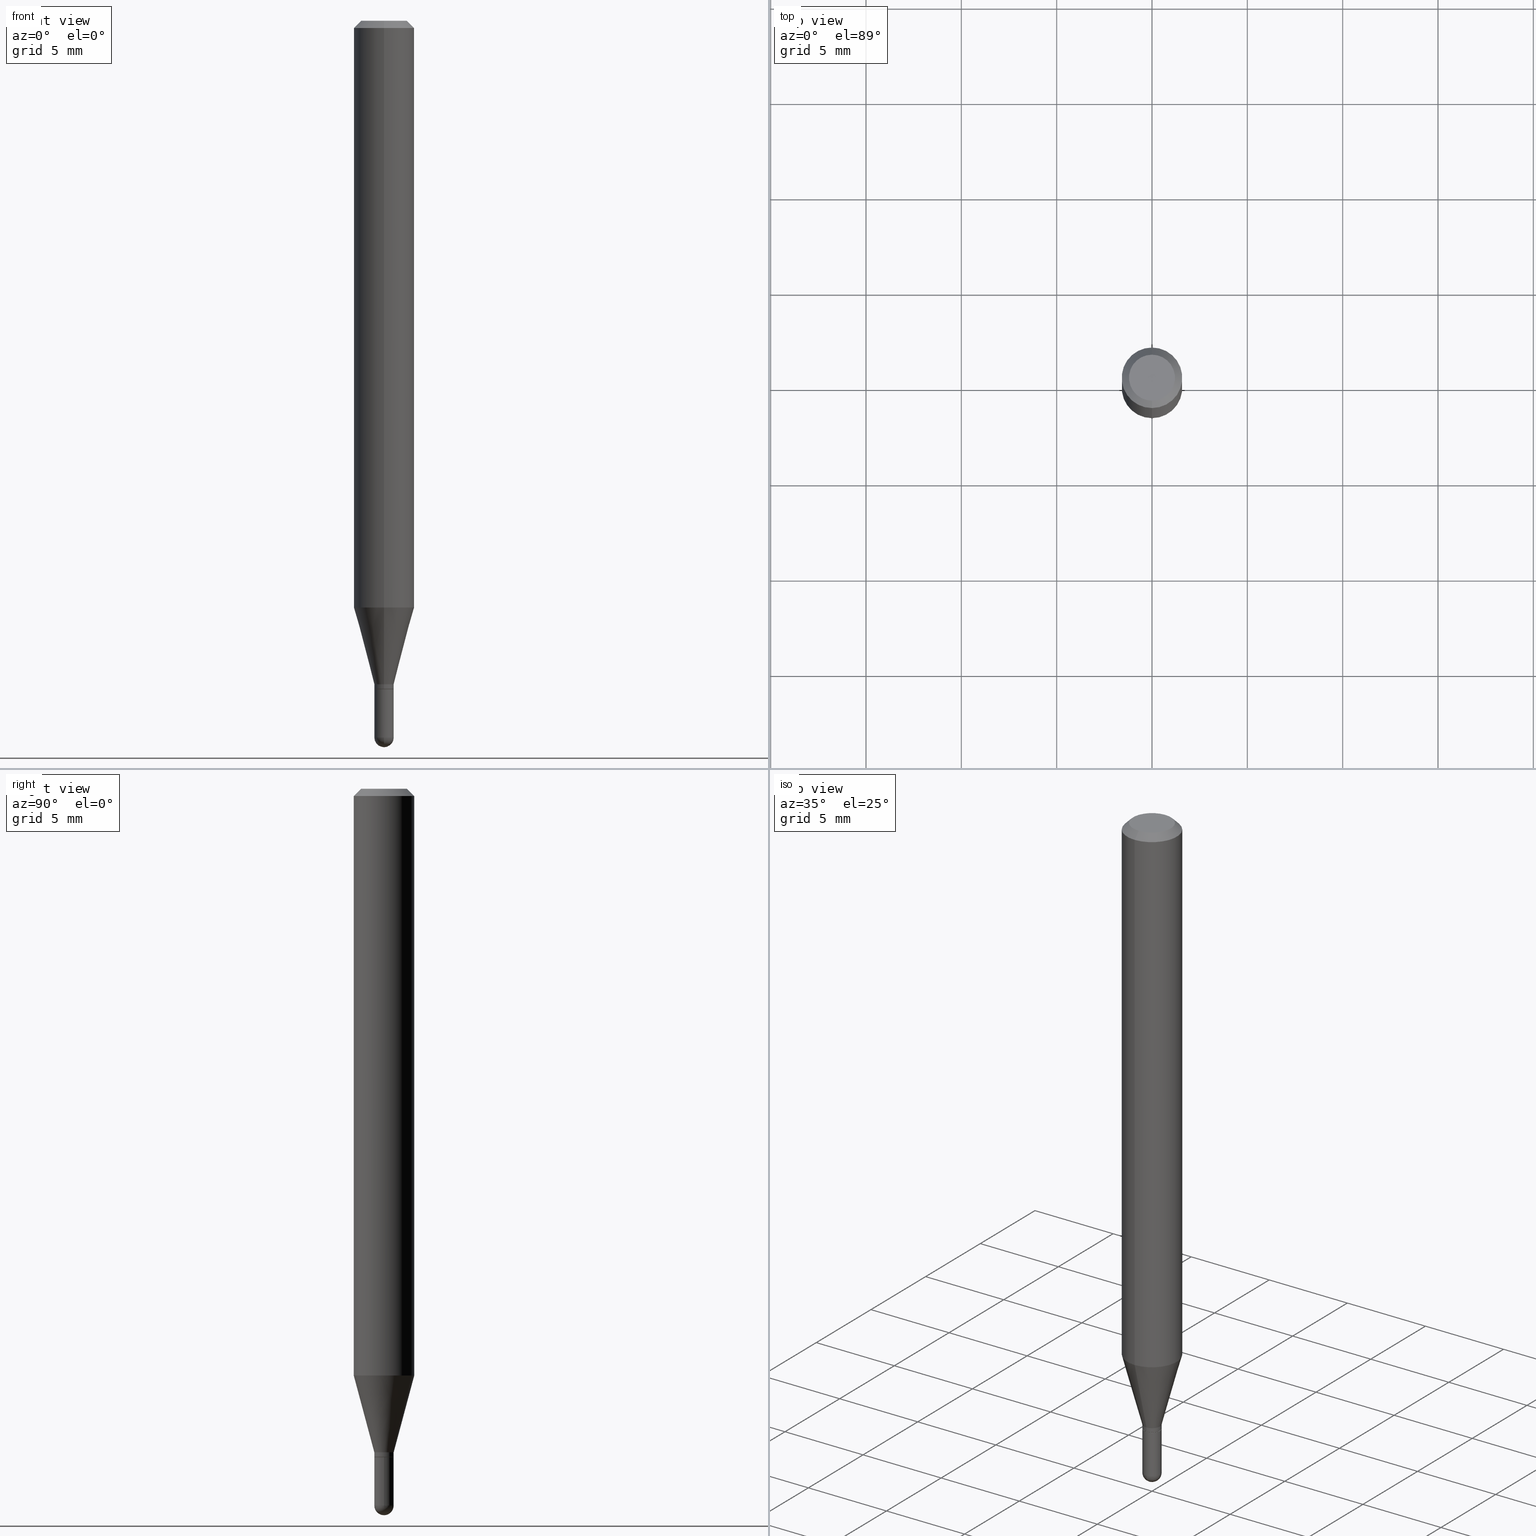
[diagram: canonical four-view strip — front | top / right | iso, engineering-drawing reading convention]
A machine part, canonical four-view strip (front | top / right | iso — engineering-drawing reading convention). The complete STEP part file that produces these views, byte-faithful:
ISO-10303-21;
HEADER;
FILE_DESCRIPTION (( 'STEP AP203' ),
    '1' );
FILE_NAME ('03175.STEP',
    '2024-03-08T18:29:08',
    ( '' ),
    ( '' ),
    'SwSTEP 2.0',
    'SolidWorks 2023',
    '' );
FILE_SCHEMA (( 'CONFIG_CONTROL_DESIGN' ));
ENDSEC;

DATA;
#1 = VECTOR ( 'NONE', #44, 39.37007874015748143 ) ;
#2 = CYLINDRICAL_SURFACE ( 'NONE', #414, 0.06250000000000000000 ) ;
#3 =( GEOMETRIC_REPRESENTATION_CONTEXT ( 3 ) GLOBAL_UNCERTAINTY_ASSIGNED_CONTEXT ( ( #288 ) ) GLOBAL_UNIT_ASSIGNED_CONTEXT ( ( #127, #453, #491 ) ) REPRESENTATION_CONTEXT ( 'NONE', 'WORKASPACE' ) );
#4 = VERTEX_POINT ( 'NONE', #255 ) ;
#5 = ADVANCED_BREP_SHAPE_REPRESENTATION ( '03175', ( #494, #320, #63 ), #3 ) ;
#6 = DIRECTION ( 'NONE',  ( 6.982962677686265922E-15, 1.000000000000000000, -3.491463564824593118E-15 ) ) ;
#7 = DIRECTION ( 'NONE',  ( -2.445481217715954779E-29, 3.491463564824593118E-15, 1.000000000000000000 ) ) ;
#8 = ORIENTED_EDGE ( 'NONE', *, *, #385, .F. ) ;
#9 = DIRECTION ( 'NONE',  ( -2.445481217715955060E-29, 3.491463564824593118E-15, 1.000000000000000000 ) ) ;
#10 = VECTOR ( 'NONE', #327, 39.37007874015748143 ) ;
#11 = ADVANCED_FACE ( 'NONE', ( #417 ), #413, .T. ) ;
#12 = MECHANICAL_CONTEXT ( 'NONE', #315, 'mechanical' ) ;
#13 = COORDINATED_UNIVERSAL_TIME_OFFSET ( 5, 0, .BEHIND. ) ;
#14 = CARTESIAN_POINT ( 'NONE',  ( 1.385558334732532599E-16, 0.01949999999999518091, -1.380000000000000115 ) ) ;
#15 = EDGE_CURVE ( 'NONE', #68, #52, #466, .T. ) ;
#16 = AXIS2_PLACEMENT_3D ( 'NONE', #507, #301, #503 ) ;
#17 = DIRECTION ( 'NONE',  ( -2.445481217715955060E-29, 3.491463564824593118E-15, 1.000000000000000000 ) ) ;
#18 = EDGE_LOOP ( 'NONE', ( #232, #415, #124, #407 ) ) ;
#19 = ORIENTED_EDGE ( 'NONE', *, *, #149, .T. ) ;
#20 = SHAPE_DEFINITION_REPRESENTATION ( #410, #5 ) ;
#21 = EDGE_LOOP ( 'NONE', ( #129, #443, #339, #319, #286 ) ) ;
#22 = CONICAL_SURFACE ( 'NONE', #312, 0.06250000000000000000, 0.7853981633974483900 ) ;
#23 = AXIS2_PLACEMENT_3D ( 'NONE', #113, #254, #217 ) ;
#24 = AXIS2_PLACEMENT_3D ( 'NONE', #25, #279, #378 ) ;
#25 = CARTESIAN_POINT ( 'NONE',  ( 3.668221826573874260E-31, -5.237195347236806550E-17, -0.01499999999999976179 ) ) ;
#26 = CC_DESIGN_PERSON_AND_ORGANIZATION_ASSIGNMENT ( #94, #53, ( #338 ) ) ;
#27 = DATE_TIME_ROLE ( 'classification_date' ) ;
#28 = CARTESIAN_POINT ( 'NONE',  ( -0.02000000000000000389, -4.850709767393677259E-15, -1.479999999999999982 ) ) ;
#29 = CARTESIAN_POINT ( 'NONE',  ( 4.440892098500920012E-16, 0.06249999999999575340, -1.211387840678323391 ) ) ;
#30 = AXIS2_PLACEMENT_3D ( 'NONE', #33, #200, #190 ) ;
#31 = AXIS2_PLACEMENT_3D ( 'NONE', #146, #342, #416 ) ;
#32 = DIRECTION ( 'NONE',  ( -2.445481217715954779E-29, 3.491463564824593118E-15, 1.000000000000000000 ) ) ;
#33 = CARTESIAN_POINT ( 'NONE',  ( 3.619293833154002365E-29, -5.167392381487854879E-15, -1.479999999999999982 ) ) ;
#34 = FACE_OUTER_BOUND ( 'NONE', #21, .T. ) ;
#35 = CARTESIAN_POINT ( 'NONE',  ( 3.619293833154002365E-29, -5.167392381487854879E-15, -1.479999999999999982 ) ) ;
#36 = DESIGN_CONTEXT ( 'detailed design', #93, 'design' ) ;
#37 = CC_DESIGN_PERSON_AND_ORGANIZATION_ASSIGNMENT ( #170, #214, ( #338 ) ) ;
#38 = ORIENTED_EDGE ( 'NONE', *, *, #326, .F. ) ;
#39 = EDGE_LOOP ( 'NONE', ( #332, #258, #145, #404 ) ) ;
#40 = DIRECTION ( 'NONE',  ( -2.445468806185136877E-29, 3.491481338843145188E-15, 1.000000000000000000 ) ) ;
#41 = ORIENTED_EDGE ( 'NONE', *, *, #392, .T. ) ;
#42 = AXIS2_PLACEMENT_3D ( 'NONE', #333, #17, #136 ) ;
#43 = CIRCLE ( 'NONE', #347, 0.04749999999999999362 ) ;
#44 = DIRECTION ( 'NONE',  ( -2.445481217715954779E-29, 3.491463564824593118E-15, 1.000000000000000000 ) ) ;
#45 = ORIENTED_EDGE ( 'NONE', *, *, #446, .T. ) ;
#46 = CARTESIAN_POINT ( 'NONE',  ( -1.396592535536915414E-16, -0.02000000000000480907, -1.379500000000000171 ) ) ;
#47 = DIRECTION ( 'NONE',  ( -6.982962677686265922E-15, -1.000000000000000000, 4.370956789862821150E-15 ) ) ;
#48 = ORIENTED_EDGE ( 'NONE', *, *, #498, .T. ) ;
#49 = ORIENTED_EDGE ( 'NONE', *, *, #418, .F. ) ;
#50 = DATE_TIME_ROLE ( 'creation_date' ) ;
#51 = ORIENTED_EDGE ( 'NONE', *, *, #326, .T. ) ;
#52 = VERTEX_POINT ( 'NONE', #182 ) ;
#53 = PERSON_AND_ORGANIZATION_ROLE ( 'creator' ) ;
#54 = AXIS2_PLACEMENT_3D ( 'NONE', #508, #82, #400 ) ;
#55 = PRODUCT_DEFINITION ( 'UNKNOWN', '', #338, #36 ) ;
#56 = ORIENTED_EDGE ( 'NONE', *, *, #446, .F. ) ;
#57 = ORIENTED_EDGE ( 'NONE', *, *, #351, .T. ) ;
#58 = ADVANCED_FACE ( 'NONE', ( #95 ), #243, .T. ) ;
#59 = DIRECTION ( 'NONE',  ( 1.000000000000000000, 0.000000000000000000, 0.000000000000000000 ) ) ;
#60 = ORIENTED_EDGE ( 'NONE', *, *, #248, .F. ) ;
#61 = LENGTH_MEASURE_WITH_UNIT ( LENGTH_MEASURE( 0.02539999999999999897 ), #368 );
#62 = AXIS2_PLACEMENT_3D ( 'NONE', #160, #305, #512 ) ;
#63 = AXIS2_PLACEMENT_3D ( 'NONE', #495, #445, #59 ) ;
#64 = CARTESIAN_POINT ( 'NONE',  ( -0.02000000000000000042, -4.850709767393677259E-15, -1.380000000000000115 ) ) ;
#65 = FACE_OUTER_BOUND ( 'NONE', #464, .T. ) ;
#66 = VERTEX_POINT ( 'NONE', #64 ) ;
#67 = ORIENTED_EDGE ( 'NONE', *, *, #100, .T. ) ;
#68 = VERTEX_POINT ( 'NONE', #211 ) ;
#69 = DIRECTION ( 'NONE',  ( -1.000000000000000000, 6.982962677686265922E-15, -4.883557194083112340E-29 ) ) ;
#70 = CARTESIAN_POINT ( 'NONE',  ( 1.396592535537590876E-16, 0.01999999999999518135, -1.380000000000000115 ) ) ;
#71 = DIRECTION ( 'NONE',  ( -4.937700262164674260E-15, -0.7071067811865632269, 0.7071067811865319186 ) ) ;
#72 = DIRECTION ( 'NONE',  ( -2.445481217715955060E-29, 3.491463564824593118E-15, 1.000000000000000000 ) ) ;
#73 = DIRECTION ( 'NONE',  ( -2.445468806185136597E-29, 3.491481338843145583E-15, 1.000000000000000000 ) ) ;
#74 = EDGE_CURVE ( 'NONE', #66, #213, #161, .T. ) ;
#75 = CARTESIAN_POINT ( 'NONE',  ( 3.350309268270858250E-29, -4.783305083809692626E-15, -1.369999999999999885 ) ) ;
#76 = DIRECTION ( 'NONE',  ( -6.982962677686265133E-15, -1.000000000000000000, 0.000000000000000000 ) ) ;
#77 = VECTOR ( 'NONE', #172, 39.37007874015748143 ) ;
#78 = DIRECTION ( 'NONE',  ( -6.982962677686266711E-15, -1.000000000000000000, 3.491463564824593906E-15 ) ) ;
#79 = DIRECTION ( 'NONE',  ( -1.807323732225332900E-15, -0.2588190451025185745, 0.9659258262890689783 ) ) ;
#80 = EDGE_CURVE ( 'NONE', #201, #52, #506, .T. ) ;
#81 = CYLINDRICAL_SURFACE ( 'NONE', #181, 0.02000000000000000042 ) ;
#82 = DIRECTION ( 'NONE',  ( -2.445481217715955060E-29, 3.491463564824593118E-15, 1.000000000000000000 ) ) ;
#83 = DIRECTION ( 'NONE',  ( 2.445481217715955060E-29, -3.491463564824593118E-15, -1.000000000000000000 ) ) ;
#84 = EDGE_LOOP ( 'NONE', ( #169, #112, #419, #253 ) ) ;
#85 = VERTEX_POINT ( 'NONE', #436 ) ;
#86 = CARTESIAN_POINT ( 'NONE',  ( 2.930988785010726484E-16, 0.01999999999999513972, -1.369999999999999885 ) ) ;
#87 = AXIS2_PLACEMENT_3D ( 'NONE', #70, #219, #304 ) ;
#88 = AXIS2_PLACEMENT_3D ( 'NONE', #334, #141, #462 ) ;
#89 = CARTESIAN_POINT ( 'NONE',  ( 4.440892098500625669E-16, 0.06250000000000000000, -2.182164728015370698E-16 ) ) ;
#90 = SECURITY_CLASSIFICATION ( '', '', #150 ) ;
#91 = DIRECTION ( 'NONE',  ( -2.445468806185136597E-29, 3.491481338843145583E-15, 1.000000000000000000 ) ) ;
#92 = EDGE_LOOP ( 'NONE', ( #241, #227 ) ) ;
#93 = APPLICATION_CONTEXT ( 'configuration controlled 3d designs of mechanical parts and assemblies' ) ;
#94 = PERSON_AND_ORGANIZATION ( #206, #323 ) ;
#95 = FACE_OUTER_BOUND ( 'NONE', #18, .T. ) ;
#96 = AXIS2_PLACEMENT_3D ( 'NONE', #426, #72, #349 ) ;
#97 = CARTESIAN_POINT ( 'NONE',  ( -0.02000000000000000042, 1.421085471520200401E-16, -9.837870180509812545E-31 ) ) ;
#98 = CLOSED_SHELL ( 'NONE', ( #139, #403, #125, #444, #234 ) ) ;
#99 = DIRECTION ( 'NONE',  ( -2.445468806185136877E-29, 3.491481338843145188E-15, 1.000000000000000000 ) ) ;
#100 = EDGE_CURVE ( 'NONE', #366, #138, #244, .T. ) ;
#101 = PERSON_AND_ORGANIZATION ( #206, #323 ) ;
#102 = DIRECTION ( 'NONE',  ( -6.982962677686265133E-15, -1.000000000000000000, 0.000000000000000000 ) ) ;
#103 = CIRCLE ( 'NONE', #54, 0.01949999999999999997 ) ;
#104 = CC_DESIGN_APPROVAL ( #379, ( #90 ) ) ;
#105 = ORIENTED_EDGE ( 'NONE', *, *, #281, .T. ) ;
#106 = ORIENTED_EDGE ( 'NONE', *, *, #433, .F. ) ;
#107 = ORIENTED_EDGE ( 'NONE', *, *, #230, .T. ) ;
#108 = CARTESIAN_POINT ( 'NONE',  ( 3.619293833154002365E-29, -5.167392381487854879E-15, -1.479999999999999982 ) ) ;
#109 = DIRECTION ( 'NONE',  ( -2.445481217715955060E-29, 3.491463564824593118E-15, 1.000000000000000000 ) ) ;
#110 = LINE ( 'NONE', #423, #274 ) ;
#111 = CIRCLE ( 'NONE', #451, 0.02000000000000000389 ) ;
#112 = ORIENTED_EDGE ( 'NONE', *, *, #239, .T. ) ;
#113 = CARTESIAN_POINT ( 'NONE',  ( 3.668221826573874260E-31, -5.237195347236806550E-17, -0.01499999999999976179 ) ) ;
#114 = PLANE ( 'NONE',  #87 ) ;
#115 = DIRECTION ( 'NONE',  ( -2.445468806185136597E-29, 3.491481338843145583E-15, 1.000000000000000000 ) ) ;
#116 = FACE_OUTER_BOUND ( 'NONE', #126, .T. ) ;
#117 = DIRECTION ( 'NONE',  ( -6.982962677686265133E-15, -1.000000000000000000, 0.000000000000000000 ) ) ;
#118 = AXIS2_PLACEMENT_3D ( 'NONE', #434, #231, #355 ) ;
#119 = CARTESIAN_POINT ( 'NONE',  ( 4.364351673553919652E-16, 0.06249999999999995143, -0.01499999999999997863 ) ) ;
#120 = FACE_OUTER_BOUND ( 'NONE', #266, .T. ) ;
#121 = ORIENTED_EDGE ( 'NONE', *, *, #425, .T. ) ;
#122 = FACE_OUTER_BOUND ( 'NONE', #204, .T. ) ;
#123 = CARTESIAN_POINT ( 'NONE',  ( 3.373541339839160558E-29, -4.816473987675526698E-15, -1.379500000000000171 ) ) ;
#124 = ORIENTED_EDGE ( 'NONE', *, *, #143, .T. ) ;
#125 = ADVANCED_FACE ( 'NONE', ( #345 ), #114, .F. ) ;
#126 = EDGE_LOOP ( 'NONE', ( #449, #48, #57, #176 ) ) ;
#127 =( CONVERSION_BASED_UNIT ( 'INCH', #61 ) LENGTH_UNIT ( ) NAMED_UNIT ( #399 ) );
#128 = CALENDAR_DATE ( 2024, 8, 3 ) ;
#129 = ORIENTED_EDGE ( 'NONE', *, *, #385, .T. ) ;
#130 = APPROVAL_STATUS ( 'not_yet_approved' ) ;
#131 = DIRECTION ( 'NONE',  ( -6.982962677686264344E-15, -1.000000000000000000, 0.000000000000000000 ) ) ;
#132 = AXIS2_PLACEMENT_3D ( 'NONE', #271, #359, #6 ) ;
#133 = APPROVAL_PERSON_ORGANIZATION ( #183, #379, #144 ) ;
#134 = ORIENTED_EDGE ( 'NONE', *, *, #425, .F. ) ;
#135 = PERSON_AND_ORGANIZATION ( #206, #323 ) ;
#136 = DIRECTION ( 'NONE',  ( -6.982962677686265133E-15, -1.000000000000000000, 3.491463564824593512E-15 ) ) ;
#137 = CARTESIAN_POINT ( 'NONE',  ( 1.403321903126532161E-16, 0.01949999999999518091, -1.380000000000000115 ) ) ;
#138 = VERTEX_POINT ( 'NONE', #156 ) ;
#139 = ADVANCED_FACE ( 'NONE', ( #34 ), #81, .T. ) ;
#140 = DIRECTION ( 'NONE',  ( -2.445481217715955060E-29, 3.491463564824593118E-15, 1.000000000000000000 ) ) ;
#141 = DIRECTION ( 'NONE',  ( -2.445481217715955060E-29, 3.491463564824593118E-15, 1.000000000000000000 ) ) ;
#142 = AXIS2_PLACEMENT_3D ( 'NONE', #280, #9, #131 ) ;
#143 = EDGE_CURVE ( 'NONE', #421, #292, #306, .T. ) ;
#144 = APPROVAL_ROLE ( '' ) ;
#145 = ORIENTED_EDGE ( 'NONE', *, *, #207, .T. ) ;
#146 = CARTESIAN_POINT ( 'NONE',  ( 3.350309268270858250E-29, -4.783305083809692626E-15, -1.369999999999999885 ) ) ;
#147 = VERTEX_POINT ( 'NONE', #28 ) ;
#148 = FACE_OUTER_BOUND ( 'NONE', #84, .T. ) ;
#149 = EDGE_CURVE ( 'NONE', #212, #292, #282, .T. ) ;
#150 = SECURITY_CLASSIFICATION_LEVEL ( 'unclassified' ) ;
#151 = CARTESIAN_POINT ( 'NONE',  ( 1.421085471520529751E-16, 0.01999999999999513972, -1.369999999999999885 ) ) ;
#152 = CONICAL_SURFACE ( 'NONE', #16, 0.01999999999999992409, 0.2617993877991506846 ) ;
#153 = DIRECTION ( 'NONE',  ( -2.445468806185136597E-29, 3.491481338843145583E-15, 1.000000000000000000 ) ) ;
#154 = CARTESIAN_POINT ( 'NONE',  ( 3.617583500575643027E-29, -5.169841675086150023E-15, -1.479999999999999982 ) ) ;
#155 = CC_DESIGN_DATE_AND_TIME_ASSIGNMENT ( #463, #27, ( #90 ) ) ;
#156 = CARTESIAN_POINT ( 'NONE',  ( -4.364351673553621364E-16, -0.06250000000000424660, -1.211387840678322725 ) ) ;
#157 = CARTESIAN_POINT ( 'NONE',  ( -1.396592535536912702E-16, -0.02000000000000470846, -1.369999999999999885 ) ) ;
#158 = ORIENTED_EDGE ( 'NONE', *, *, #207, .F. ) ;
#159 = CARTESIAN_POINT ( 'NONE',  ( -3.773273898774340269E-16, -0.04749999999999999362, 4.053323177511738528E-16 ) ) ;
#160 = CARTESIAN_POINT ( 'NONE',  ( 3.617583500575643027E-29, -5.169841675086150023E-15, -1.479999999999999982 ) ) ;
#161 = CIRCLE ( 'NONE', #215, 0.02000000000000000042 ) ;
#162 = CIRCLE ( 'NONE', #167, 0.02000000000000000389 ) ;
#163 = DIRECTION ( 'NONE',  ( 1.000000000000000000, -6.982962677686284065E-15, 0.000000000000000000 ) ) ;
#164 = EDGE_LOOP ( 'NONE', ( #105, #369, #60, #56 ) ) ;
#165 = PLANE ( 'NONE',  #132 ) ;
#166 = CARTESIAN_POINT ( 'NONE',  ( 2.962426211748327384E-29, -4.229516508599904405E-15, -1.211387840678323169 ) ) ;
#167 = AXIS2_PLACEMENT_3D ( 'NONE', #108, #73, #287 ) ;
#168 = APPROVAL_ROLE ( '' ) ;
#169 = ORIENTED_EDGE ( 'NONE', *, *, #191, .T. ) ;
#170 = PERSON_AND_ORGANIZATION ( #206, #323 ) ;
#171 = APPROVAL_DATE_TIME ( #371, #477 ) ;
#172 = DIRECTION ( 'NONE',  ( 5.024295867788190974E-15, 0.7071067811865681119, 0.7071067811865270336 ) ) ;
#173 = CIRCLE ( 'NONE', #62, 0.01999999999999989633 ) ;
#174 = VERTEX_POINT ( 'NONE', #390 ) ;
#175 = EDGE_CURVE ( 'NONE', #85, #201, #372, .T. ) ;
#176 = ORIENTED_EDGE ( 'NONE', *, *, #457, .F. ) ;
#177 = DIRECTION ( 'NONE',  ( -2.445481217715955060E-29, 3.491463564824593118E-15, 1.000000000000000000 ) ) ;
#178 = PERSON_AND_ORGANIZATION_ROLE ( 'classification_officer' ) ;
#179 = VERTEX_POINT ( 'NONE', #310 ) ;
#180 = VECTOR ( 'NONE', #222, 39.37007874015748143 ) ;
#181 = AXIS2_PLACEMENT_3D ( 'NONE', #431, #264, #386 ) ;
#182 = CARTESIAN_POINT ( 'NONE',  ( -4.364351673553912750E-16, -0.06250000000000005551, -0.01499999999999954321 ) ) ;
#183 = PERSON_AND_ORGANIZATION ( #206, #323 ) ;
#184 = ADVANCED_FACE ( 'NONE', ( #259 ), #22, .T. ) ;
#185 = DIRECTION ( 'NONE',  ( -2.445481217715955060E-29, 3.491463564824593118E-15, 1.000000000000000000 ) ) ;
#186 = LINE ( 'NONE', #151, #218 ) ;
#187 = CC_DESIGN_DATE_AND_TIME_ASSIGNMENT ( #240, #50, ( #55 ) ) ;
#188 = AXIS2_PLACEMENT_3D ( 'NONE', #194, #83, #270 ) ;
#189 = DIRECTION ( 'NONE',  ( 2.445481217715955060E-29, -3.491463564824593118E-15, -1.000000000000000000 ) ) ;
#190 = DIRECTION ( 'NONE',  ( 1.000000000000000000, -6.982962677686282488E-15, 0.000000000000000000 ) ) ;
#191 = EDGE_CURVE ( 'NONE', #421, #236, #329, .T. ) ;
#192 = DIRECTION ( 'NONE',  ( 1.000000000000000000, -6.982962677686265133E-15, 4.883557194083112340E-29 ) ) ;
#193 = PRODUCT_RELATED_PRODUCT_CATEGORY ( 'detail', '', ( #448 ) ) ;
#194 = CARTESIAN_POINT ( 'NONE',  ( 3.668221826573874260E-31, -5.237195347236806550E-17, -0.01499999999999976179 ) ) ;
#195 = ORIENTED_EDGE ( 'NONE', *, *, #496, .T. ) ;
#196 = AXIS2_PLACEMENT_3D ( 'NONE', #228, #393, #353 ) ;
#197 = ADVANCED_FACE ( 'NONE', ( #116 ), #430, .T. ) ;
#198 = LINE ( 'NONE', #157, #290 ) ;
#199 = ORIENTED_EDGE ( 'NONE', *, *, #465, .T. ) ;
#200 = DIRECTION ( 'NONE',  ( -2.445468806185136597E-29, 3.491481338843145583E-15, 1.000000000000000000 ) ) ;
#201 = VERTEX_POINT ( 'NONE', #159 ) ;
#202 = CARTESIAN_POINT ( 'NONE',  ( 3.374764080448017954E-29, -4.818219719457939433E-15, -1.380000000000000115 ) ) ;
#203 = VECTOR ( 'NONE', #99, 39.37007874015748143 ) ;
#204 = EDGE_LOOP ( 'NONE', ( #238, #362 ) ) ;
#205 = APPROVAL_STATUS ( 'not_yet_approved' ) ;
#206 = PERSON ( 'UNSPECIFIED', 'UNSPECIFIED', 'UNSPECIFIED', ('UNSPECIFIED'), ('UNSPECIFIED'), ('UNSPECIFIED') ) ;
#207 = EDGE_CURVE ( 'NONE', #85, #68, #479, .T. ) ;
#208 = APPROVAL_ROLE ( '' ) ;
#209 = VECTOR ( 'NONE', #40, 39.37007874015748143 ) ;
#210 = DATE_AND_TIME ( #299, #314 ) ;
#211 = CARTESIAN_POINT ( 'NONE',  ( 4.440892098500922971E-16, 0.06249999999999995143, -0.01499999999999997863 ) ) ;
#212 = VERTEX_POINT ( 'NONE', #86 ) ;
#213 = VERTEX_POINT ( 'NONE', #439 ) ;
#214 = PERSON_AND_ORGANIZATION_ROLE ( 'design_supplier' ) ;
#215 = AXIS2_PLACEMENT_3D ( 'NONE', #471, #153, #163 ) ;
#216 = ORIENTED_EDGE ( 'NONE', *, *, #74, .F. ) ;
#217 = DIRECTION ( 'NONE',  ( -6.982962677686265922E-15, -1.000000000000000000, 3.483106191921935554E-15 ) ) ;
#218 = VECTOR ( 'NONE', #237, 39.37007874015748143 ) ;
#219 = DIRECTION ( 'NONE',  ( 2.438088387897960049E-29, -3.491481338843145188E-15, -1.000000000000000000 ) ) ;
#220 = CARTESIAN_POINT ( 'NONE',  ( 3.374746952535488593E-29, -4.818244247603541543E-15, -1.380000000000000115 ) ) ;
#221 = CC_DESIGN_PERSON_AND_ORGANIZATION_ASSIGNMENT ( #135, #178, ( #90 ) ) ;
#222 = DIRECTION ( 'NONE',  ( 4.937700262164548042E-15, 0.7071067811865451302, -0.7071067811865499042 ) ) ;
#223 = CARTESIAN_POINT ( 'NONE',  ( 2.962426211748327384E-29, -4.229516508599904405E-15, -1.211387840678323169 ) ) ;
#224 = DIRECTION ( 'NONE',  ( -4.851104656540964275E-15, -0.7071067811865500152, -0.7071067811865450192 ) ) ;
#225 = CARTESIAN_POINT ( 'NONE',  ( -5.856629129131595822E-45, 8.361629224104893650E-31, 2.394877984220056620E-16 ) ) ;
#226 = AXIS2_PLACEMENT_3D ( 'NONE', #123, #396, #117 ) ;
#227 = ORIENTED_EDGE ( 'NONE', *, *, #498, .F. ) ;
#228 = CARTESIAN_POINT ( 'NONE',  ( 3.374764080448017954E-29, -4.818219719457939433E-15, -1.380000000000000115 ) ) ;
#229 = LINE ( 'NONE', #394, #209 ) ;
#230 = EDGE_CURVE ( 'NONE', #179, #454, #478, .T. ) ;
#231 = DIRECTION ( 'NONE',  ( -2.445468806185136597E-29, 3.491481338843145583E-15, 1.000000000000000000 ) ) ;
#232 = ORIENTED_EDGE ( 'NONE', *, *, #239, .F. ) ;
#233 = DIRECTION ( 'NONE',  ( 1.000000000000000000, -6.982962677686265133E-15, 4.883557194083112340E-29 ) ) ;
#234 = ADVANCED_FACE ( 'NONE', ( #429 ), #476, .T. ) ;
#235 = DIRECTION ( 'NONE',  ( -6.982962677686265133E-15, -1.000000000000000000, 0.000000000000000000 ) ) ;
#236 = VERTEX_POINT ( 'NONE', #318 ) ;
#237 = DIRECTION ( 'NONE',  ( 1.839019923739603076E-15, 0.2588190451025253469, 0.9659258262890670910 ) ) ;
#238 = ORIENTED_EDGE ( 'NONE', *, *, #175, .T. ) ;
#239 = EDGE_CURVE ( 'NONE', #236, #212, #483, .T. ) ;
#240 = DATE_AND_TIME ( #492, #382 ) ;
#241 = ORIENTED_EDGE ( 'NONE', *, *, #392, .F. ) ;
#242 = PERSON_AND_ORGANIZATION ( #206, #323 ) ;
#243 = CYLINDRICAL_SURFACE ( 'NONE', #42, 0.01999999999999992409 ) ;
#244 = CIRCLE ( 'NONE', #424, 0.06250000000000000000 ) ;
#245 = AXIS2_PLACEMENT_3D ( 'NONE', #384, #346, #469 ) ;
#246 = APPLICATION_PROTOCOL_DEFINITION ( 'international standard', 'config_control_design', 1994, #315 ) ;
#247 = AXIS2_PLACEMENT_3D ( 'NONE', #75, #185, #343 ) ;
#248 = EDGE_CURVE ( 'NONE', #138, #366, #283, .T. ) ;
#249 = APPLICATION_PROTOCOL_DEFINITION ( 'international standard', 'config_control_design', 1994, #93 ) ;
#250 = PERSON_AND_ORGANIZATION_ROLE ( 'design_owner' ) ;
#251 = ADVANCED_FACE ( 'NONE', ( #148 ), #260, .T. ) ;
#252 = CIRCLE ( 'NONE', #30, 0.02000000000000000389 ) ;
#253 = ORIENTED_EDGE ( 'NONE', *, *, #143, .F. ) ;
#254 = DIRECTION ( 'NONE',  ( -2.445481217715955060E-29, 3.491463564824593118E-15, 1.000000000000000000 ) ) ;
#255 = CARTESIAN_POINT ( 'NONE',  ( 1.421085471520558347E-16, 0.01999999999999478237, -1.479999999999999982 ) ) ;
#256 = CARTESIAN_POINT ( 'NONE',  ( 3.617583500575643027E-29, -5.169841675086150023E-15, -1.479999999999999982 ) ) ;
#257 = ORIENTED_EDGE ( 'NONE', *, *, #80, .T. ) ;
#258 = ORIENTED_EDGE ( 'NONE', *, *, #175, .F. ) ;
#259 = FACE_OUTER_BOUND ( 'NONE', #39, .T. ) ;
#260 = CYLINDRICAL_SURFACE ( 'NONE', #245, 0.01999999999999992409 ) ;
#261 = AXIS2_PLACEMENT_3D ( 'NONE', #154, #192, #235 ) ;
#262 = APPROVAL_PERSON_ORGANIZATION ( #242, #477, #208 ) ;
#263 = CALENDAR_DATE ( 2024, 8, 3 ) ;
#264 = DIRECTION ( 'NONE',  ( -2.445468806185136597E-29, 3.491481338843145583E-15, 1.000000000000000000 ) ) ;
#265 = CARTESIAN_POINT ( 'NONE',  ( 3.617583500575643027E-29, -5.169841675086150023E-15, -1.479999999999999982 ) ) ;
#266 = EDGE_LOOP ( 'NONE', ( #380, #497, #352, #461 ) ) ;
#267 = ADVANCED_FACE ( 'NONE', ( #65 ), #152, .T. ) ;
#268 = PLANE ( 'NONE',  #373 ) ;
#269 = VECTOR ( 'NONE', #7, 39.37007874015748143 ) ;
#270 = DIRECTION ( 'NONE',  ( 6.982962677686265922E-15, 1.000000000000000000, -3.483106191921935554E-15 ) ) ;
#271 = CARTESIAN_POINT ( 'NONE',  ( 3.316907271900976096E-16, 0.04749999999999999362, -4.610062011816531671E-17 ) ) ;
#272 = FACE_OUTER_BOUND ( 'NONE', #358, .T. ) ;
#273 = CC_DESIGN_PERSON_AND_ORGANIZATION_ASSIGNMENT ( #321, #488, ( #55 ) ) ;
#274 = VECTOR ( 'NONE', #71, 39.37007874015748143 ) ;
#275 = ORIENTED_EDGE ( 'NONE', *, *, #74, .T. ) ;
#276 = LOCAL_TIME ( 13, 29, 8.000000000000000000, #324 ) ;
#277 = ADVANCED_FACE ( 'NONE', ( #376 ), #501, .T. ) ;
#278 = DATE_AND_TIME ( #128, #276 ) ;
#279 = DIRECTION ( 'NONE',  ( -2.445481217715955060E-29, 3.491463564824593118E-15, 1.000000000000000000 ) ) ;
#280 = CARTESIAN_POINT ( 'NONE',  ( 3.374764080448017954E-29, -4.818219719457939433E-15, -1.380000000000000115 ) ) ;
#281 = EDGE_CURVE ( 'NONE', #292, #212, #302, .T. ) ;
#282 = CIRCLE ( 'NONE', #247, 0.01999999999999992409 ) ;
#283 = CIRCLE ( 'NONE', #313, 0.06250000000000000000 ) ;
#284 = LOCAL_TIME ( 13, 29, 8.000000000000000000, #13 ) ;
#285 = CLOSED_SHELL ( 'NONE', ( #251, #11, #470, #473, #277, #267, #309, #184, #486, #406, #197, #58 ) ) ;
#286 = ORIENTED_EDGE ( 'NONE', *, *, #377, .T. ) ;
#287 = DIRECTION ( 'NONE',  ( 1.000000000000000000, -6.982962677686282488E-15, 0.000000000000000000 ) ) ;
#288 = UNCERTAINTY_MEASURE_WITH_UNIT (LENGTH_MEASURE( 1.000000000000000082E-05 ), #127, 'distance_accuracy_value', 'NONE');
#289 = APPROVAL ( #130, 'UNSPECIFIED' ) ;
#290 = VECTOR ( 'NONE', #79, 39.37007874015748143 ) ;
#291 = CC_DESIGN_APPROVAL ( #289, ( #338 ) ) ;
#292 = VERTEX_POINT ( 'NONE', #296 ) ;
#293 = CARTESIAN_POINT ( 'NONE',  ( -1.361677722148484356E-16, -0.01950000000000481903, -1.380000000000000115 ) ) ;
#294 = ORIENTED_EDGE ( 'NONE', *, *, #348, .T. ) ;
#295 = ORIENTED_EDGE ( 'NONE', *, *, #489, .F. ) ;
#296 = CARTESIAN_POINT ( 'NONE',  ( -1.396592535536912702E-16, -0.02000000000000470846, -1.369999999999999885 ) ) ;
#297 = EDGE_LOOP ( 'NONE', ( #435, #275 ) ) ;
#298 = DIRECTION ( 'NONE',  ( -6.982962677686265922E-15, -1.000000000000000000, 0.000000000000000000 ) ) ;
#299 = CALENDAR_DATE ( 2024, 8, 3 ) ;
#300 = AXIS2_PLACEMENT_3D ( 'NONE', #202, #140, #383 ) ;
#301 = DIRECTION ( 'NONE',  ( -2.445481217715955060E-29, 3.491463564824593118E-15, 1.000000000000000000 ) ) ;
#302 = CIRCLE ( 'NONE', #322, 0.01999999999999992409 ) ;
#303 = CC_DESIGN_APPROVAL ( #477, ( #55 ) ) ;
#304 = DIRECTION ( 'NONE',  ( -1.000000000000000000, 6.982962677686265922E-15, -4.876176775795935793E-29 ) ) ;
#305 = DIRECTION ( 'NONE',  ( 1.000000000000000000, -7.105427357601001070E-15, 4.926315508542082329E-29 ) ) ;
#306 = LINE ( 'NONE', #427, #450 ) ;
#307 = DIRECTION ( 'NONE',  ( -6.982962677686265922E-15, -1.000000000000000000, 3.491463564824593118E-15 ) ) ;
#308 = CARTESIAN_POINT ( 'NONE',  ( 3.619293833154002365E-29, -5.167392381487854879E-15, -1.479999999999999982 ) ) ;
#309 = ADVANCED_FACE ( 'NONE', ( #505 ), #455, .T. ) ;
#310 = CARTESIAN_POINT ( 'NONE',  ( -1.396592535536888050E-16, -0.02000000000000512132, -1.479999999999999982 ) ) ;
#311 = CARTESIAN_POINT ( 'NONE',  ( 0.000000000000000000, 0.000000000000000000, 0.000000000000000000 ) ) ;
#312 = AXIS2_PLACEMENT_3D ( 'NONE', #468, #189, #474 ) ;
#313 = AXIS2_PLACEMENT_3D ( 'NONE', #166, #401, #47 ) ;
#314 = LOCAL_TIME ( 13, 29, 8.000000000000000000, #337 ) ;
#315 = APPLICATION_CONTEXT ( 'configuration controlled 3d designs of mechanical parts and assemblies' ) ;
#316 = CARTESIAN_POINT ( 'NONE',  ( -5.856629129131595822E-45, 8.361629224104893650E-31, 2.394877984220056620E-16 ) ) ;
#317 = DIRECTION ( 'NONE',  ( -2.445481217715955060E-29, 3.491463564824593118E-15, 1.000000000000000000 ) ) ;
#318 = CARTESIAN_POINT ( 'NONE',  ( 1.421085471520527286E-16, 0.01999999999999503564, -1.379500000000000171 ) ) ;
#319 = ORIENTED_EDGE ( 'NONE', *, *, #465, .F. ) ;
#320 = MANIFOLD_SOLID_BREP ( 'Body-Move/Copy2[2]', #285 ) ;
#321 = PERSON_AND_ORGANIZATION ( #206, #323 ) ;
#322 = AXIS2_PLACEMENT_3D ( 'NONE', #500, #177, #102 ) ;
#323 = ORGANIZATION ( 'UNSPECIFIED', 'UNSPECIFIED', '' ) ;
#324 = COORDINATED_UNIVERSAL_TIME_OFFSET ( 5, 0, .BEHIND. ) ;
#325 = VERTEX_POINT ( 'NONE', #137 ) ;
#326 = EDGE_CURVE ( 'NONE', #52, #68, #381, .T. ) ;
#327 = DIRECTION ( 'NONE',  ( -2.445481217715954779E-29, 3.491463564824593118E-15, 1.000000000000000000 ) ) ;
#328 = VECTOR ( 'NONE', #224, 39.37007874015748143 ) ;
#329 = CIRCLE ( 'NONE', #96, 0.01999999999999992409 ) ;
#330 = EDGE_CURVE ( 'NONE', #147, #179, #162, .T. ) ;
#331 = APPROVAL_STATUS ( 'not_yet_approved' ) ;
#332 = ORIENTED_EDGE ( 'NONE', *, *, #80, .F. ) ;
#333 = CARTESIAN_POINT ( 'NONE',  ( 0.000000000000000000, 0.000000000000000000, 0.000000000000000000 ) ) ;
#334 = CARTESIAN_POINT ( 'NONE',  ( 0.000000000000000000, 0.000000000000000000, 0.000000000000000000 ) ) ;
#335 = EDGE_LOOP ( 'NONE', ( #41, #195, #459, #499 ) ) ;
#336 = AXIS2_PLACEMENT_3D ( 'NONE', #265, #233, #76 ) ;
#337 = COORDINATED_UNIVERSAL_TIME_OFFSET ( 5, 0, .BEHIND. ) ;
#338 = PRODUCT_DEFINITION_FORMATION_WITH_SPECIFIED_SOURCE ( 'ANY', '', #448, .NOT_KNOWN. ) ;
#339 = ORIENTED_EDGE ( 'NONE', *, *, #365, .F. ) ;
#340 = VERTEX_POINT ( 'NONE', #293 ) ;
#341 = ORIENTED_EDGE ( 'NONE', *, *, #489, .T. ) ;
#342 = DIRECTION ( 'NONE',  ( -2.445481217715955060E-29, 3.491463564824593118E-15, 1.000000000000000000 ) ) ;
#343 = DIRECTION ( 'NONE',  ( -6.982962677686265133E-15, -1.000000000000000000, 0.000000000000000000 ) ) ;
#344 = DIRECTION ( 'NONE',  ( 1.000000000000000000, -6.982962677686284065E-15, 0.000000000000000000 ) ) ;
#345 = FACE_OUTER_BOUND ( 'NONE', #297, .T. ) ;
#346 = DIRECTION ( 'NONE',  ( -2.445481217715955060E-29, 3.491463564824593118E-15, 1.000000000000000000 ) ) ;
#347 = AXIS2_PLACEMENT_3D ( 'NONE', #225, #480, #354 ) ;
#348 = EDGE_CURVE ( 'NONE', #174, #179, #456, .T. ) ;
#349 = DIRECTION ( 'NONE',  ( -6.982962677686265133E-15, -1.000000000000000000, 0.000000000000000000 ) ) ;
#350 = FACE_OUTER_BOUND ( 'NONE', #92, .T. ) ;
#351 = EDGE_CURVE ( 'NONE', #340, #421, #110, .T. ) ;
#352 = ORIENTED_EDGE ( 'NONE', *, *, #377, .F. ) ;
#353 = DIRECTION ( 'NONE',  ( -6.982962677686264344E-15, -1.000000000000000000, 0.000000000000000000 ) ) ;
#354 = DIRECTION ( 'NONE',  ( -6.982962677686266711E-15, -1.000000000000000000, 3.491463564824593906E-15 ) ) ;
#355 = DIRECTION ( 'NONE',  ( 1.000000000000000000, -6.982962677686265922E-15, 4.876176775795935793E-29 ) ) ;
#356 = FACE_OUTER_BOUND ( 'NONE', #458, .T. ) ;
#357 = CONICAL_SURFACE ( 'NONE', #188, 0.06250000000000000000, 0.7853981633974483900 ) ;
#358 = EDGE_LOOP ( 'NONE', ( #49, #257, #51, #158 ) ) ;
#359 = DIRECTION ( 'NONE',  ( 2.445481217715954779E-29, -3.491463564824593118E-15, -1.000000000000000000 ) ) ;
#360 = CARTESIAN_POINT ( 'NONE',  ( 1.421085471520194731E-16, 0.01999999999999992409, -6.982927129649160449E-17 ) ) ;
#361 = LINE ( 'NONE', #97, #203 ) ;
#362 = ORIENTED_EDGE ( 'NONE', *, *, #418, .T. ) ;
#363 = EDGE_LOOP ( 'NONE', ( #106, #294, #504, #8 ) ) ;
#364 = PERSON_AND_ORGANIZATION ( #206, #323 ) ;
#365 = EDGE_CURVE ( 'NONE', #213, #66, #398, .T. ) ;
#366 = VERTEX_POINT ( 'NONE', #29 ) ;
#367 = CIRCLE ( 'NONE', #142, 0.01949999999999999997 ) ;
#368 =( LENGTH_UNIT ( ) NAMED_UNIT ( * ) SI_UNIT ( $, .METRE. ) );
#369 = ORIENTED_EDGE ( 'NONE', *, *, #370, .T. ) ;
#370 = EDGE_CURVE ( 'NONE', #212, #366, #186, .T. ) ;
#371 = DATE_AND_TIME ( #412, #284 ) ;
#372 = CIRCLE ( 'NONE', #481, 0.04749999999999999362 ) ;
#373 = AXIS2_PLACEMENT_3D ( 'NONE', #428, #397, #307 ) ;
#374 = CC_DESIGN_SECURITY_CLASSIFICATION ( #90, ( #338 ) ) ;
#375 = ORIENTED_EDGE ( 'NONE', *, *, #248, .T. ) ;
#376 = FACE_OUTER_BOUND ( 'NONE', #164, .T. ) ;
#377 = EDGE_CURVE ( 'NONE', #454, #4, #111, .T. ) ;
#378 = DIRECTION ( 'NONE',  ( -6.982962677686265922E-15, -1.000000000000000000, 3.483106191921935554E-15 ) ) ;
#379 = APPROVAL ( #331, 'UNSPECIFIED' ) ;
#380 = ORIENTED_EDGE ( 'NONE', *, *, #348, .F. ) ;
#381 = CIRCLE ( 'NONE', #23, 0.06250000000000000000 ) ;
#382 = LOCAL_TIME ( 13, 29, 8.000000000000000000, #405 ) ;
#383 = DIRECTION ( 'NONE',  ( -6.982962677686264344E-15, -1.000000000000000000, 0.000000000000000000 ) ) ;
#384 = CARTESIAN_POINT ( 'NONE',  ( 0.000000000000000000, 0.000000000000000000, 0.000000000000000000 ) ) ;
#385 = EDGE_CURVE ( 'NONE', #4, #147, #252, .T. ) ;
#386 = DIRECTION ( 'NONE',  ( 1.000000000000000000, -6.982962677686265922E-15, 4.876176775795935793E-29 ) ) ;
#387 = DIRECTION ( 'NONE',  ( -2.445468806185136597E-29, 3.491481338843145583E-15, 1.000000000000000000 ) ) ;
#388 = CARTESIAN_POINT ( 'NONE',  ( -4.287811248607203282E-16, -0.06250000000000005551, -0.01499999999999954321 ) ) ;
#389 = AXIS2_PLACEMENT_3D ( 'NONE', #308, #91, #440 ) ;
#390 = CARTESIAN_POINT ( 'NONE',  ( 3.665637710410166169E-29, -5.240895948662160105E-15, -1.499999999999999778 ) ) ;
#391 = FACE_OUTER_BOUND ( 'NONE', #363, .T. ) ;
#392 = EDGE_CURVE ( 'NONE', #340, #325, #103, .T. ) ;
#393 = DIRECTION ( 'NONE',  ( -2.445481217715955060E-29, 3.491463564824593118E-15, 1.000000000000000000 ) ) ;
#394 = CARTESIAN_POINT ( 'NONE',  ( 0.02000000000000000042, -1.396592535537253145E-16, 9.752353551591871936E-31 ) ) ;
#395 = EDGE_LOOP ( 'NONE', ( #295, #67, #121, #402 ) ) ;
#396 = DIRECTION ( 'NONE',  ( -2.445481217715955060E-29, 3.491463564824593118E-15, 1.000000000000000000 ) ) ;
#397 = DIRECTION ( 'NONE',  ( -2.445481217715954779E-29, 3.491463564824593118E-15, 1.000000000000000000 ) ) ;
#398 = CIRCLE ( 'NONE', #493, 0.02000000000000000042 ) ;
#399 = DIMENSIONAL_EXPONENTS ( 1.000000000000000000, 0.000000000000000000, 0.000000000000000000, 0.000000000000000000, 0.000000000000000000, 0.000000000000000000, 0.000000000000000000 ) ;
#400 = DIRECTION ( 'NONE',  ( -6.982962677686264344E-15, -1.000000000000000000, 0.000000000000000000 ) ) ;
#401 = DIRECTION ( 'NONE',  ( -2.445481217715955060E-29, 3.491463564824593118E-15, 1.000000000000000000 ) ) ;
#402 = ORIENTED_EDGE ( 'NONE', *, *, #15, .F. ) ;
#403 = ADVANCED_FACE ( 'NONE', ( #120 ), #510, .T. ) ;
#404 = ORIENTED_EDGE ( 'NONE', *, *, #15, .T. ) ;
#405 = COORDINATED_UNIVERSAL_TIME_OFFSET ( 5, 0, .BEHIND. ) ;
#406 = ADVANCED_FACE ( 'NONE', ( #350 ), #268, .F. ) ;
#407 = ORIENTED_EDGE ( 'NONE', *, *, #149, .F. ) ;
#408 = AXIS2_PLACEMENT_3D ( 'NONE', #256, #69, #298 ) ;
#409 = APPROVAL_PERSON_ORGANIZATION ( #364, #289, #168 ) ;
#410 = PRODUCT_DEFINITION_SHAPE ( 'NONE', 'NONE',  #55 ) ;
#411 = LINE ( 'NONE', #14, #77 ) ;
#412 = CALENDAR_DATE ( 2024, 8, 3 ) ;
#413 = CONICAL_SURFACE ( 'NONE', #300, 0.01949999999999999997, 0.7853981633974739252 ) ;
#414 = AXIS2_PLACEMENT_3D ( 'NONE', #311, #317, #482 ) ;
#415 = ORIENTED_EDGE ( 'NONE', *, *, #457, .T. ) ;
#416 = DIRECTION ( 'NONE',  ( -6.982962677686265133E-15, -1.000000000000000000, 0.000000000000000000 ) ) ;
#417 = FACE_OUTER_BOUND ( 'NONE', #335, .T. ) ;
#418 = EDGE_CURVE ( 'NONE', #201, #85, #43, .T. ) ;
#419 = ORIENTED_EDGE ( 'NONE', *, *, #281, .F. ) ;
#420 = APPROVAL_DATE_TIME ( #210, #379 ) ;
#421 = VERTEX_POINT ( 'NONE', #46 ) ;
#422 = DIRECTION ( 'NONE',  ( -2.445481217715955060E-29, 3.491463564824593118E-15, 1.000000000000000000 ) ) ;
#423 = CARTESIAN_POINT ( 'NONE',  ( -1.361677722148484356E-16, -0.01950000000000481903, -1.380000000000000115 ) ) ;
#424 = AXIS2_PLACEMENT_3D ( 'NONE', #223, #422, #509 ) ;
#425 = EDGE_CURVE ( 'NONE', #138, #52, #432, .T. ) ;
#426 = CARTESIAN_POINT ( 'NONE',  ( 3.373541339839160558E-29, -4.816473987675526698E-15, -1.379500000000000171 ) ) ;
#427 = CARTESIAN_POINT ( 'NONE',  ( -1.396592535537247721E-16, -0.01999999999999992409, 6.982927129649160449E-17 ) ) ;
#428 = CARTESIAN_POINT ( 'NONE',  ( 3.374764080448017954E-29, -4.818219719457939433E-15, -1.380000000000000115 ) ) ;
#429 = FACE_OUTER_BOUND ( 'NONE', #452, .T. ) ;
#430 = CONICAL_SURFACE ( 'NONE', #196, 0.01949999999999999997, 0.7853981633974739252 ) ;
#431 = CARTESIAN_POINT ( 'NONE',  ( 0.000000000000000000, 0.000000000000000000, 0.000000000000000000 ) ) ;
#432 = LINE ( 'NONE', #475, #1 ) ;
#433 = EDGE_CURVE ( 'NONE', #174, #4, #173, .T. ) ;
#434 = CARTESIAN_POINT ( 'NONE',  ( 0.000000000000000000, 0.000000000000000000, 0.000000000000000000 ) ) ;
#435 = ORIENTED_EDGE ( 'NONE', *, *, #365, .T. ) ;
#436 = CARTESIAN_POINT ( 'NONE',  ( 3.840629472727447874E-16, 0.04749999999999999362, 7.364327909283752044E-17 ) ) ;
#437 = DIRECTION ( 'NONE',  ( 1.000000000000000000, -6.982962677686282488E-15, 0.000000000000000000 ) ) ;
#438 = CC_DESIGN_PERSON_AND_ORGANIZATION_ASSIGNMENT ( #101, #250, ( #448 ) ) ;
#439 = CARTESIAN_POINT ( 'NONE',  ( 0.02000000000000000042, -4.957903501157267351E-15, -1.380000000000000115 ) ) ;
#440 = DIRECTION ( 'NONE',  ( 1.000000000000000000, -6.982962677686282488E-15, 0.000000000000000000 ) ) ;
#441 = LINE ( 'NONE', #89, #10 ) ;
#442 = CIRCLE ( 'NONE', #226, 0.01999999999999992409 ) ;
#443 = ORIENTED_EDGE ( 'NONE', *, *, #511, .T. ) ;
#444 = ADVANCED_FACE ( 'NONE', ( #391 ), #472, .T. ) ;
#445 = DIRECTION ( 'NONE',  ( 0.000000000000000000, 0.000000000000000000, 1.000000000000000000 ) ) ;
#446 = EDGE_CURVE ( 'NONE', #292, #138, #198, .T. ) ;
#447 = APPROVAL_DATE_TIME ( #278, #289 ) ;
#448 = PRODUCT ( '03175', '03175', '', ( #12 ) ) ;
#449 = ORIENTED_EDGE ( 'NONE', *, *, #496, .F. ) ;
#450 = VECTOR ( 'NONE', #32, 39.37007874015748143 ) ;
#451 = AXIS2_PLACEMENT_3D ( 'NONE', #35, #115, #437 ) ;
#452 = EDGE_LOOP ( 'NONE', ( #484, #487, #107, #199, #216 ) ) ;
#453 =( NAMED_UNIT ( * ) PLANE_ANGLE_UNIT ( ) SI_UNIT ( $, .RADIAN. ) );
#454 = VERTEX_POINT ( 'NONE', #485 ) ;
#455 = CYLINDRICAL_SURFACE ( 'NONE', #88, 0.06250000000000000000 ) ;
#456 = CIRCLE ( 'NONE', #408, 0.01999999999999989633 ) ;
#457 = EDGE_CURVE ( 'NONE', #236, #421, #442, .T. ) ;
#458 = EDGE_LOOP ( 'NONE', ( #375, #341, #38, #134 ) ) ;
#459 = ORIENTED_EDGE ( 'NONE', *, *, #191, .F. ) ;
#460 = COORDINATED_UNIVERSAL_TIME_OFFSET ( 5, 0, .BEHIND. ) ;
#461 = ORIENTED_EDGE ( 'NONE', *, *, #230, .F. ) ;
#462 = DIRECTION ( 'NONE',  ( -6.982962677686265922E-15, -1.000000000000000000, 3.491463564824593118E-15 ) ) ;
#463 = DATE_AND_TIME ( #263, #467 ) ;
#464 = EDGE_LOOP ( 'NONE', ( #490, #19, #45, #502 ) ) ;
#465 = EDGE_CURVE ( 'NONE', #454, #213, #229, .T. ) ;
#466 = CIRCLE ( 'NONE', #24, 0.06250000000000000000 ) ;
#467 = LOCAL_TIME ( 13, 29, 8.000000000000000000, #460 ) ;
#468 = CARTESIAN_POINT ( 'NONE',  ( 3.668221826573874260E-31, -5.237195347236806550E-17, -0.01499999999999976179 ) ) ;
#469 = DIRECTION ( 'NONE',  ( -6.982962677686265133E-15, -1.000000000000000000, 3.491463564824593512E-15 ) ) ;
#470 = ADVANCED_FACE ( 'NONE', ( #272 ), #357, .T. ) ;
#471 = CARTESIAN_POINT ( 'NONE',  ( 3.374746952535488593E-29, -4.818244247603541543E-15, -1.380000000000000115 ) ) ;
#472 = SPHERICAL_SURFACE ( 'NONE', #336, 0.01999999999999989633 ) ;
#473 = ADVANCED_FACE ( 'NONE', ( #356 ), #2, .T. ) ;
#474 = DIRECTION ( 'NONE',  ( 6.982962677686265922E-15, 1.000000000000000000, -3.483106191921935554E-15 ) ) ;
#475 = CARTESIAN_POINT ( 'NONE',  ( -4.364351673553916201E-16, -0.06250000000000000000, 2.182164728015370698E-16 ) ) ;
#476 = CYLINDRICAL_SURFACE ( 'NONE', #118, 0.02000000000000000042 ) ;
#477 = APPROVAL ( #205, 'UNSPECIFIED' ) ;
#478 = CIRCLE ( 'NONE', #389, 0.02000000000000000389 ) ;
#479 = LINE ( 'NONE', #119, #180 ) ;
#480 = DIRECTION ( 'NONE',  ( -2.445481217715955060E-29, 3.491463564824593118E-15, 1.000000000000000000 ) ) ;
#481 = AXIS2_PLACEMENT_3D ( 'NONE', #316, #109, #78 ) ;
#482 = DIRECTION ( 'NONE',  ( -6.982962677686265922E-15, -1.000000000000000000, 3.491463564824593118E-15 ) ) ;
#483 = LINE ( 'NONE', #360, #269 ) ;
#484 = ORIENTED_EDGE ( 'NONE', *, *, #511, .F. ) ;
#485 = CARTESIAN_POINT ( 'NONE',  ( 0.02000000000000000389, -5.132477568099424807E-15, -1.479999999999999982 ) ) ;
#486 = ADVANCED_FACE ( 'NONE', ( #122 ), #165, .F. ) ;
#487 = ORIENTED_EDGE ( 'NONE', *, *, #330, .T. ) ;
#488 = PERSON_AND_ORGANIZATION_ROLE ( 'creator' ) ;
#489 = EDGE_CURVE ( 'NONE', #366, #68, #441, .T. ) ;
#490 = ORIENTED_EDGE ( 'NONE', *, *, #370, .F. ) ;
#491 =( NAMED_UNIT ( * ) SI_UNIT ( $, .STERADIAN. ) SOLID_ANGLE_UNIT ( ) );
#492 = CALENDAR_DATE ( 2024, 8, 3 ) ;
#493 = AXIS2_PLACEMENT_3D ( 'NONE', #220, #387, #344 ) ;
#494 = MANIFOLD_SOLID_BREP ( 'Body-Move/Copy2[1]', #98 ) ;
#495 = CARTESIAN_POINT ( 'NONE',  ( 0.000000000000000000, 0.000000000000000000, 0.000000000000000000 ) ) ;
#496 = EDGE_CURVE ( 'NONE', #325, #236, #411, .T. ) ;
#497 = ORIENTED_EDGE ( 'NONE', *, *, #433, .T. ) ;
#498 = EDGE_CURVE ( 'NONE', #325, #340, #367, .T. ) ;
#499 = ORIENTED_EDGE ( 'NONE', *, *, #351, .F. ) ;
#500 = CARTESIAN_POINT ( 'NONE',  ( 3.350309268270858250E-29, -4.783305083809692626E-15, -1.369999999999999885 ) ) ;
#501 = CONICAL_SURFACE ( 'NONE', #31, 0.01999999999999992409, 0.2617993877991506846 ) ;
#502 = ORIENTED_EDGE ( 'NONE', *, *, #100, .F. ) ;
#503 = DIRECTION ( 'NONE',  ( -6.982962677686265133E-15, -1.000000000000000000, 0.000000000000000000 ) ) ;
#504 = ORIENTED_EDGE ( 'NONE', *, *, #330, .F. ) ;
#505 = FACE_OUTER_BOUND ( 'NONE', #395, .T. ) ;
#506 = LINE ( 'NONE', #388, #328 ) ;
#507 = CARTESIAN_POINT ( 'NONE',  ( 3.350309268270858250E-29, -4.783305083809692626E-15, -1.369999999999999885 ) ) ;
#508 = CARTESIAN_POINT ( 'NONE',  ( 3.374764080448017954E-29, -4.818219719457939433E-15, -1.380000000000000115 ) ) ;
#509 = DIRECTION ( 'NONE',  ( -6.982962677686265922E-15, -1.000000000000000000, 4.370956789862821150E-15 ) ) ;
#510 = SPHERICAL_SURFACE ( 'NONE', #261, 0.01999999999999989633 ) ;
#511 = EDGE_CURVE ( 'NONE', #147, #66, #361, .T. ) ;
#512 = DIRECTION ( 'NONE',  ( 7.105427357601000281E-15, 1.000000000000000000, 0.000000000000000000 ) ) ;
ENDSEC;
END-ISO-10303-21;
